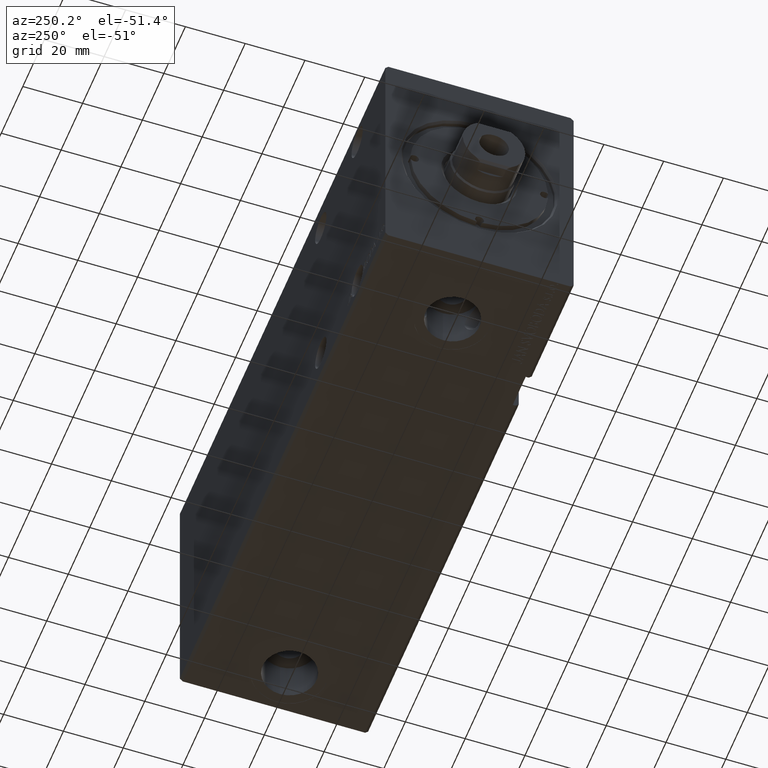
[diagram: clean part render]
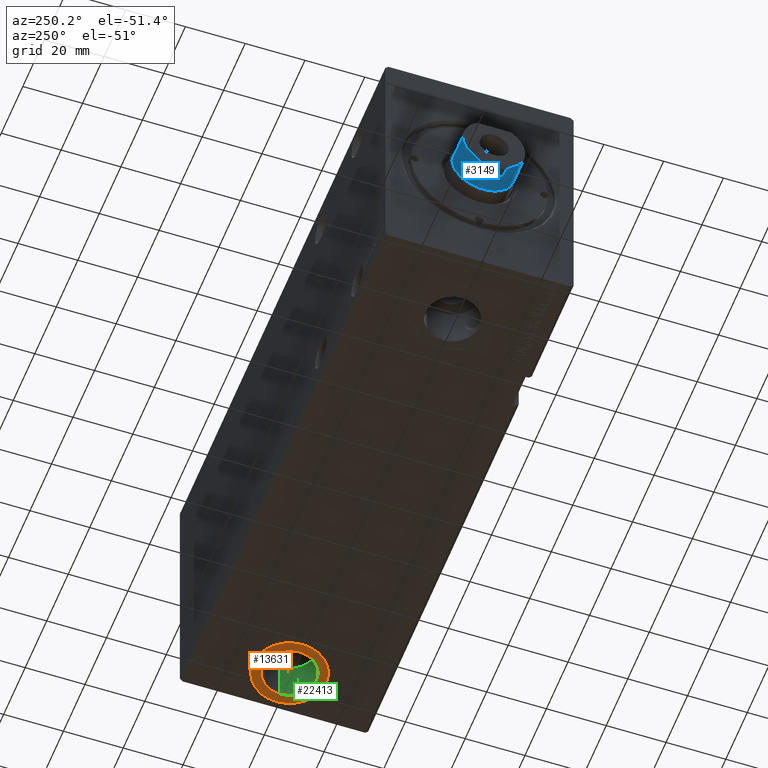
[diagram: same view with three faces highlighted in distinct colors, each labeled with its STEP entity id]
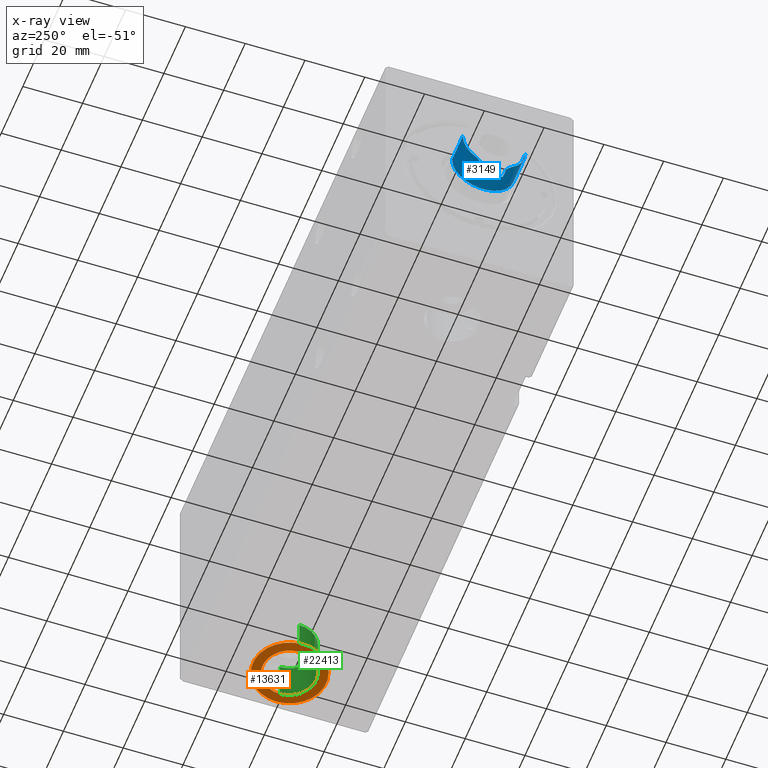
[diagram: x-ray of the same camera — body ghosted, the three highlighted faces saturated]
A machine part, auxiliary view with three faces highlighted in distinct colors.
The next image is the same camera in x-ray (body ghosted, the three faces saturated) — at least one of them is partly hidden behind the body in this view.
Their STEP definitions:

[orange] entity #13631 — the highlighted planar face has unit normal (0, 0, -1).
#142 = FACE_OUTER_BOUND ( 'NONE', #35245, .T. ) ;
#459 = CARTESIAN_POINT ( 'NONE',  ( 167.4999999999999716, -2.031972879945228792E-14, -42.40000000000000568 ) ) ;
#1636 = EDGE_CURVE ( 'NONE', #33943, #10063, #26621, .T. ) ;
#2282 = ORIENTED_EDGE ( 'NONE', *, *, #27897, .T. ) ;
#2510 = ORIENTED_EDGE ( 'NONE', *, *, #38556, .T. ) ;
#3583 = PLANE ( 'NONE',  #10373 ) ;
#3604 = DIRECTION ( 'NONE',  ( -1.000000000000000000, 0.000000000000000000, 0.000000000000000000 ) ) ;
#5862 = CIRCLE ( 'NONE', #8447, 12.25000000000001066 ) ;
#6199 = DIRECTION ( 'NONE',  ( -1.000000000000000000, 0.000000000000000000, -0.000000000000000000 ) ) ;
#8324 = VERTEX_POINT ( 'NONE', #39114 ) ;
#8447 = AXIS2_PLACEMENT_3D ( 'NONE', #29048, #32088, #10891 ) ;
#9627 = DIRECTION ( 'NONE',  ( 0.000000000000000000, 0.000000000000000000, -1.000000000000000000 ) ) ;
#10063 = VERTEX_POINT ( 'NONE', #459 ) ;
#10240 = CARTESIAN_POINT ( 'NONE',  ( 185.5000000000000000, -1.921754668021966843E-14, -42.40000000000000568 ) ) ;
#10373 = AXIS2_PLACEMENT_3D ( 'NONE', #13044, #9627, #6199 ) ;
#10891 = DIRECTION ( 'NONE',  ( -1.000000000000000000, 0.000000000000000000, 0.000000000000000000 ) ) ;
#13044 = CARTESIAN_POINT ( 'NONE',  ( 176.5000000000000000, -2.031972879945228792E-14, -42.40000000000000568 ) ) ;
#13631 = ADVANCED_FACE ( 'NONE', ( #31222, #142 ), #3583, .T. ) ;
#13905 = CARTESIAN_POINT ( 'NONE',  ( 164.2499999999999716, -2.031972879945228792E-14, -42.40000000000000568 ) ) ;
#15174 = EDGE_LOOP ( 'NONE', ( #32285, #30063 ) ) ;
#15192 = CARTESIAN_POINT ( 'NONE',  ( 176.5000000000000000, -2.031972879945228792E-14, -42.40000000000000568 ) ) ;
#15304 = DIRECTION ( 'NONE',  ( 0.000000000000000000, 0.000000000000000000, -1.000000000000000000 ) ) ;
#15587 = DIRECTION ( 'NONE',  ( -1.000000000000000000, 0.000000000000000000, 0.000000000000000000 ) ) ;
#15647 = AXIS2_PLACEMENT_3D ( 'NONE', #34469, #15304, #3604 ) ;
#16307 = AXIS2_PLACEMENT_3D ( 'NONE', #36781, #18400, #36991 ) ;
#17983 = VERTEX_POINT ( 'NONE', #13905 ) ;
#18400 = DIRECTION ( 'NONE',  ( 0.000000000000000000, 0.000000000000000000, -1.000000000000000000 ) ) ;
#18858 = CIRCLE ( 'NONE', #15647, 12.25000000000001066 ) ;
#22822 = CIRCLE ( 'NONE', #24763, 9.000000000000007105 ) ;
#24763 = AXIS2_PLACEMENT_3D ( 'NONE', #15192, #30932, #15587 ) ;
#25423 = EDGE_CURVE ( 'NONE', #10063, #33943, #22822, .T. ) ;
#26621 = CIRCLE ( 'NONE', #16307, 9.000000000000007105 ) ;
#27897 = EDGE_CURVE ( 'NONE', #8324, #17983, #18858, .T. ) ;
#29048 = CARTESIAN_POINT ( 'NONE',  ( 176.5000000000000000, -2.031972879945228792E-14, -42.40000000000000568 ) ) ;
#30063 = ORIENTED_EDGE ( 'NONE', *, *, #1636, .F. ) ;
#30932 = DIRECTION ( 'NONE',  ( 0.000000000000000000, 0.000000000000000000, -1.000000000000000000 ) ) ;
#31222 = FACE_BOUND ( 'NONE', #15174, .T. ) ;
#32088 = DIRECTION ( 'NONE',  ( 0.000000000000000000, 0.000000000000000000, -1.000000000000000000 ) ) ;
#32285 = ORIENTED_EDGE ( 'NONE', *, *, #25423, .F. ) ;
#33943 = VERTEX_POINT ( 'NONE', #10240 ) ;
#34469 = CARTESIAN_POINT ( 'NONE',  ( 176.5000000000000000, -2.031972879945228792E-14, -42.40000000000000568 ) ) ;
#35245 = EDGE_LOOP ( 'NONE', ( #2510, #2282 ) ) ;
#36781 = CARTESIAN_POINT ( 'NONE',  ( 176.5000000000000000, -2.031972879945228792E-14, -42.40000000000000568 ) ) ;
#36991 = DIRECTION ( 'NONE',  ( -1.000000000000000000, 0.000000000000000000, 0.000000000000000000 ) ) ;
#38556 = EDGE_CURVE ( 'NONE', #17983, #8324, #5862, .T. ) ;
#39114 = CARTESIAN_POINT ( 'NONE',  ( 188.7500000000000000, -1.881953647049677605E-14, -42.40000000000000568 ) ) ;

[blue] entity #3149 — the highlighted cylindrical surface (edge-blend (fillet) strip) has radius 10.46 mm, axis along (-1, -0, -0).
#399 = FACE_OUTER_BOUND ( 'NONE', #8880, .T. ) ;
#696 = CARTESIAN_POINT ( 'NONE',  ( -9.500000000000000000, 4.377396486497392658, 164.5000000000000000 ) ) ;
#793 = CARTESIAN_POINT ( 'NONE',  ( 0.000000000000000000, -3.041802546688275165E-14, 168.5000000000000000 ) ) ;
#865 = DIRECTION ( 'NONE',  ( -0.000000000000000000, -1.805224063316483446E-16, 1.000000000000000000 ) ) ;
#1659 = ORIENTED_EDGE ( 'NONE', *, *, #19638, .T. ) ;
#2603 = LINE ( 'NONE', #36705, #13434 ) ;
#2966 = VERTEX_POINT ( 'NONE', #20379 ) ;
#3149 = ADVANCED_FACE ( 'NONE', ( #399 ), #6653, .T. ) ;
#3174 = VERTEX_POINT ( 'NONE', #5210 ) ;
#3533 = ORIENTED_EDGE ( 'NONE', *, *, #20183, .T. ) ;
#3657 = LINE ( 'NONE', #30902, #38520 ) ;
#3733 = CARTESIAN_POINT ( 'NONE',  ( -9.500000000000000000, 4.377396486497391770, 167.7900000000000205 ) ) ;
#4265 = CARTESIAN_POINT ( 'NONE',  ( -9.056889589612563185, 5.256118063110158722, 168.2331104103874679 ) ) ;
#4652 = CARTESIAN_POINT ( 'NONE',  ( -9.500000000000000000, -4.377396486497452166, 167.7900000000000205 ) ) ;
#4905 = VERTEX_POINT ( 'NONE', #31831 ) ;
#5210 = CARTESIAN_POINT ( 'NONE',  ( 1.314046015485110656E-15, -10.46000000000002572, 158.5000000000000000 ) ) ;
#5992 = EDGE_CURVE ( 'NONE', #9551, #31610, #3657, .T. ) ;
#6181 = CARTESIAN_POINT ( 'NONE',  ( 0.000000000000000000, -3.041802546688275165E-14, 168.5000000000000000 ) ) ;
#6653 = CYLINDRICAL_SURFACE ( 'NONE', #19243, 10.45999999999999908 ) ;
#7367 = LINE ( 'NONE', #29141, #31097 ) ;
#8435 = ORIENTED_EDGE ( 'NONE', *, *, #39249, .F. ) ;
#8880 = EDGE_LOOP ( 'NONE', ( #35569, #12678, #3533, #34906, #1659, #12886, #8435, #35072, #15121, #33626 ) ) ;
#9049 = DIRECTION ( 'NONE',  ( -0.000000000000000000, -1.805224063316483446E-16, 1.000000000000000000 ) ) ;
#9551 = VERTEX_POINT ( 'NONE', #696 ) ;
#9706 = VERTEX_POINT ( 'NONE', #13390 ) ;
#12395 = AXIS2_PLACEMENT_3D ( 'NONE', #6181, #865, #13174 ) ;
#12678 = ORIENTED_EDGE ( 'NONE', *, *, #38725, .T. ) ;
#12886 = ORIENTED_EDGE ( 'NONE', *, *, #32753, .T. ) ;
#13154 = VERTEX_POINT ( 'NONE', #4652 ) ;
#13174 = DIRECTION ( 'NONE',  ( 0.000000000000000000, -1.000000000000000000, 0.000000000000000000 ) ) ;
#13181 = VERTEX_POINT ( 'NONE', #26428 ) ;
#13390 = CARTESIAN_POINT ( 'NONE',  ( -8.790000000000011582, -5.669876541865807695, 168.5000000000000000 ) ) ;
#13434 = VECTOR ( 'NONE', #9049, 1000.000000000000000 ) ;
#13577 = CIRCLE ( 'NONE', #19383, 10.45999999999999908 ) ;
#14014 = DIRECTION ( 'NONE',  ( 0.000000000000000000, 0.000000000000000000, 1.000000000000000000 ) ) ;
#14318 = CIRCLE ( 'NONE', #12395, 10.46000000000000085 ) ;
#14504 = DIRECTION ( 'NONE',  ( 0.000000000000000000, -1.000000000000000000, 0.000000000000000000 ) ) ;
#14540 = CARTESIAN_POINT ( 'NONE',  ( 0.000000000000000000, 10.45999999999997065, 158.5000000000000000 ) ) ;
#15121 = ORIENTED_EDGE ( 'NONE', *, *, #24789, .T. ) ;
#17154 =( BOUNDED_CURVE ( )  B_SPLINE_CURVE ( 3, ( #25637, #17157, #4265, #29268 ),
 .UNSPECIFIED., .F., .T. ) 
 B_SPLINE_CURVE_WITH_KNOTS ( ( 4, 4 ),
 ( 3.573373807102883326, 3.714471135698164783 ),
 .UNSPECIFIED. ) 
 CURVE ( )  GEOMETRIC_REPRESENTATION_ITEM ( )  RATIONAL_B_SPLINE_CURVE ( ( 1.000000000000000000, 0.9983416499762385321, 0.9983416499762385321, 1.000000000000000000 ) ) 
 REPRESENTATION_ITEM ( '' )  );
#17157 = CARTESIAN_POINT ( 'NONE',  ( -9.293949384395542523, 4.824575729748588060, 167.9960506156045028 ) ) ;
#17949 = CARTESIAN_POINT ( 'NONE',  ( 0.000000000000000000, -2.861280140356626145E-14, 158.5000000000000000 ) ) ;
#18726 = CARTESIAN_POINT ( 'NONE',  ( -9.056889589612563185, -5.256118063110221783, 168.2331104103874679 ) ) ;
#18948 = DIRECTION ( 'NONE',  ( 0.000000000000000000, -1.000000000000000000, 0.000000000000000000 ) ) ;
#19243 = AXIS2_PLACEMENT_3D ( 'NONE', #793, #25196, #18948 ) ;
#19373 = CIRCLE ( 'NONE', #36167, 10.45999999999999908 ) ;
#19383 = AXIS2_PLACEMENT_3D ( 'NONE', #34814, #14014, #35220 ) ;
#19638 = EDGE_CURVE ( 'NONE', #9706, #13154, #34958, .T. ) ;
#20129 = EDGE_CURVE ( 'NONE', #2966, #28445, #37935, .T. ) ;
#20183 = EDGE_CURVE ( 'NONE', #3174, #13181, #2603, .T. ) ;
#20379 = CARTESIAN_POINT ( 'NONE',  ( 1.280980551908131330E-15, 10.45999999999996888, 168.5000000000000000 ) ) ;
#23649 = AXIS2_PLACEMENT_3D ( 'NONE', #23969, #27598, #14504 ) ;
#23969 = CARTESIAN_POINT ( 'NONE',  ( 0.000000000000000000, -3.041802546688275165E-14, 168.5000000000000000 ) ) ;
#24393 = CARTESIAN_POINT ( 'NONE',  ( -8.790000000000011582, -5.669876541865807695, 168.5000000000000000 ) ) ;
#24789 = EDGE_CURVE ( 'NONE', #31610, #28445, #17154, .T. ) ;
#25196 = DIRECTION ( 'NONE',  ( -0.000000000000000000, -1.805224063316483446E-16, 1.000000000000000000 ) ) ;
#25637 = CARTESIAN_POINT ( 'NONE',  ( -9.500000000000000000, 4.377396486497391770, 167.7900000000000205 ) ) ;
#26428 = CARTESIAN_POINT ( 'NONE',  ( 0.000000000000000000, -10.46000000000002927, 168.5000000000000000 ) ) ;
#26862 = DIRECTION ( 'NONE',  ( 0.000000000000000000, 1.805224063316483446E-16, -1.000000000000000000 ) ) ;
#27034 = DIRECTION ( 'NONE',  ( -0.000000000000000000, -1.805224063316483446E-16, 1.000000000000000000 ) ) ;
#27598 = DIRECTION ( 'NONE',  ( -0.000000000000000000, -1.805224063316483446E-16, 1.000000000000000000 ) ) ;
#28114 = VERTEX_POINT ( 'NONE', #14540 ) ;
#28216 = CARTESIAN_POINT ( 'NONE',  ( -9.293949384395540747, -4.824575729748651121, 167.9960506156045028 ) ) ;
#28445 = VERTEX_POINT ( 'NONE', #39315 ) ;
#29141 = CARTESIAN_POINT ( 'NONE',  ( 1.280980551908131330E-15, 10.45999999999996710, 168.5000000000000000 ) ) ;
#29268 = CARTESIAN_POINT ( 'NONE',  ( -8.790000000000011582, 5.669876541865746411, 168.5000000000000000 ) ) ;
#29687 = LINE ( 'NONE', #39391, #32987 ) ;
#30902 = CARTESIAN_POINT ( 'NONE',  ( -9.500000000000000000, 4.377396486497391770, 168.5000000000000000 ) ) ;
#31097 = VECTOR ( 'NONE', #38252, 1000.000000000000000 ) ;
#31296 = DIRECTION ( 'NONE',  ( -0.000000000000000000, -1.805224063316483446E-16, 1.000000000000000000 ) ) ;
#31610 = VERTEX_POINT ( 'NONE', #3733 ) ;
#31831 = CARTESIAN_POINT ( 'NONE',  ( -9.500000000000000000, -4.377396486497451278, 164.5000000000000000 ) ) ;
#32753 = EDGE_CURVE ( 'NONE', #13154, #4905, #29687, .T. ) ;
#32987 = VECTOR ( 'NONE', #26862, 1000.000000000000000 ) ;
#33446 = EDGE_CURVE ( 'NONE', #28114, #2966, #7367, .T. ) ;
#33626 = ORIENTED_EDGE ( 'NONE', *, *, #20129, .F. ) ;
#34284 = EDGE_CURVE ( 'NONE', #9706, #13181, #14318, .T. ) ;
#34814 = CARTESIAN_POINT ( 'NONE',  ( 0.000000000000000000, -2.969593584155615304E-14, 164.5000000000000000 ) ) ;
#34906 = ORIENTED_EDGE ( 'NONE', *, *, #34284, .F. ) ;
#34958 =( BOUNDED_CURVE ( )  B_SPLINE_CURVE ( 3, ( #24393, #18726, #28216, #39760 ),
 .UNSPECIFIED., .F., .F. ) 
 B_SPLINE_CURVE_WITH_KNOTS ( ( 4, 4 ),
 ( 2.568714171481421449, 2.709811500076702906 ),
 .UNSPECIFIED. ) 
 CURVE ( )  GEOMETRIC_REPRESENTATION_ITEM ( )  RATIONAL_B_SPLINE_CURVE ( ( 1.000000000000000000, 0.9983416499762385321, 0.9983416499762385321, 1.000000000000000000 ) ) 
 REPRESENTATION_ITEM ( '' )  );
#35072 = ORIENTED_EDGE ( 'NONE', *, *, #5992, .T. ) ;
#35220 = DIRECTION ( 'NONE',  ( 1.000000000000000000, 0.000000000000000000, 0.000000000000000000 ) ) ;
#35569 = ORIENTED_EDGE ( 'NONE', *, *, #33446, .F. ) ;
#36167 = AXIS2_PLACEMENT_3D ( 'NONE', #17949, #27034, #39357 ) ;
#36705 = CARTESIAN_POINT ( 'NONE',  ( 0.000000000000000000, -10.46000000000002927, 168.5000000000000000 ) ) ;
#37935 = CIRCLE ( 'NONE', #23649, 10.46000000000000085 ) ;
#38252 = DIRECTION ( 'NONE',  ( -0.000000000000000000, -1.805224063316483446E-16, 1.000000000000000000 ) ) ;
#38520 = VECTOR ( 'NONE', #31296, 1000.000000000000000 ) ;
#38725 = EDGE_CURVE ( 'NONE', #28114, #3174, #19373, .T. ) ;
#39249 = EDGE_CURVE ( 'NONE', #9551, #4905, #13577, .T. ) ;
#39315 = CARTESIAN_POINT ( 'NONE',  ( -8.790000000000011582, 5.669876541865746411, 168.5000000000000000 ) ) ;
#39357 = DIRECTION ( 'NONE',  ( 0.000000000000000000, -1.000000000000000000, 0.000000000000000000 ) ) ;
#39391 = CARTESIAN_POINT ( 'NONE',  ( -9.500000000000000000, -4.377396486497452166, 168.5000000000000000 ) ) ;
#39760 = CARTESIAN_POINT ( 'NONE',  ( -9.500000000000000000, -4.377396486497452166, 167.7900000000000205 ) ) ;

[green] entity #22413 — the highlighted cylindrical surface (edge-blend (fillet) strip) has radius 9 mm, axis along (-0, -0, -1).
#459 = CARTESIAN_POINT ( 'NONE',  ( 167.4999999999999716, -2.031972879945228792E-14, -42.40000000000000568 ) ) ;
#859 = CIRCLE ( 'NONE', #11813, 9.000000000000007105 ) ;
#1636 = EDGE_CURVE ( 'NONE', #33943, #10063, #26621, .T. ) ;
#2068 = DIRECTION ( 'NONE',  ( -0.000000000000000000, -0.000000000000000000, -1.000000000000000000 ) ) ;
#2478 = CARTESIAN_POINT ( 'NONE',  ( 176.5000000000000000, -2.031972879945228792E-14, -28.80000000000000782 ) ) ;
#4400 = VECTOR ( 'NONE', #8627, 1000.000000000000000 ) ;
#5048 = EDGE_LOOP ( 'NONE', ( #9529, #20887, #34929, #8665 ) ) ;
#5728 = CARTESIAN_POINT ( 'NONE',  ( 185.5000000000000000, -1.921754668021966843E-14, -28.80000000000000782 ) ) ;
#6688 = AXIS2_PLACEMENT_3D ( 'NONE', #2478, #2068, #35972 ) ;
#8627 = DIRECTION ( 'NONE',  ( -0.000000000000000000, -0.000000000000000000, -1.000000000000000000 ) ) ;
#8665 = ORIENTED_EDGE ( 'NONE', *, *, #19038, .F. ) ;
#9274 = DIRECTION ( 'NONE',  ( -1.000000000000000000, 0.000000000000000000, 0.000000000000000000 ) ) ;
#9529 = ORIENTED_EDGE ( 'NONE', *, *, #16367, .F. ) ;
#10063 = VERTEX_POINT ( 'NONE', #459 ) ;
#10240 = CARTESIAN_POINT ( 'NONE',  ( 185.5000000000000000, -1.921754668021966843E-14, -42.40000000000000568 ) ) ;
#11037 = LINE ( 'NONE', #14268, #4400 ) ;
#11813 = AXIS2_PLACEMENT_3D ( 'NONE', #26866, #33889, #9274 ) ;
#13883 = DIRECTION ( 'NONE',  ( -0.000000000000000000, -0.000000000000000000, -1.000000000000000000 ) ) ;
#14268 = CARTESIAN_POINT ( 'NONE',  ( 167.4999999999999716, -2.031972879945228792E-14, -28.80000000000000782 ) ) ;
#15979 = VERTEX_POINT ( 'NONE', #5728 ) ;
#16307 = AXIS2_PLACEMENT_3D ( 'NONE', #36781, #18400, #36991 ) ;
#16367 = EDGE_CURVE ( 'NONE', #15979, #38620, #859, .T. ) ;
#18400 = DIRECTION ( 'NONE',  ( 0.000000000000000000, 0.000000000000000000, -1.000000000000000000 ) ) ;
#19038 = EDGE_CURVE ( 'NONE', #38620, #10063, #11037, .T. ) ;
#19726 = CARTESIAN_POINT ( 'NONE',  ( 185.5000000000000000, -1.921754668021966843E-14, -28.80000000000000782 ) ) ;
#20887 = ORIENTED_EDGE ( 'NONE', *, *, #35587, .T. ) ;
#22413 = ADVANCED_FACE ( 'NONE', ( #36174 ), #26684, .F. ) ;
#22754 = LINE ( 'NONE', #19726, #33046 ) ;
#26621 = CIRCLE ( 'NONE', #16307, 9.000000000000007105 ) ;
#26684 = CYLINDRICAL_SURFACE ( 'NONE', #6688, 9.000000000000007105 ) ;
#26866 = CARTESIAN_POINT ( 'NONE',  ( 176.5000000000000000, -2.031972879945228792E-14, -28.80000000000000782 ) ) ;
#33046 = VECTOR ( 'NONE', #13883, 1000.000000000000000 ) ;
#33889 = DIRECTION ( 'NONE',  ( 0.000000000000000000, 0.000000000000000000, -1.000000000000000000 ) ) ;
#33943 = VERTEX_POINT ( 'NONE', #10240 ) ;
#34929 = ORIENTED_EDGE ( 'NONE', *, *, #1636, .T. ) ;
#35321 = CARTESIAN_POINT ( 'NONE',  ( 167.4999999999999716, -2.031972879945228792E-14, -28.80000000000000782 ) ) ;
#35587 = EDGE_CURVE ( 'NONE', #15979, #33943, #22754, .T. ) ;
#35972 = DIRECTION ( 'NONE',  ( -1.000000000000000000, 0.000000000000000000, 0.000000000000000000 ) ) ;
#36174 = FACE_OUTER_BOUND ( 'NONE', #5048, .T. ) ;
#36781 = CARTESIAN_POINT ( 'NONE',  ( 176.5000000000000000, -2.031972879945228792E-14, -42.40000000000000568 ) ) ;
#36991 = DIRECTION ( 'NONE',  ( -1.000000000000000000, 0.000000000000000000, 0.000000000000000000 ) ) ;
#38620 = VERTEX_POINT ( 'NONE', #35321 ) ;